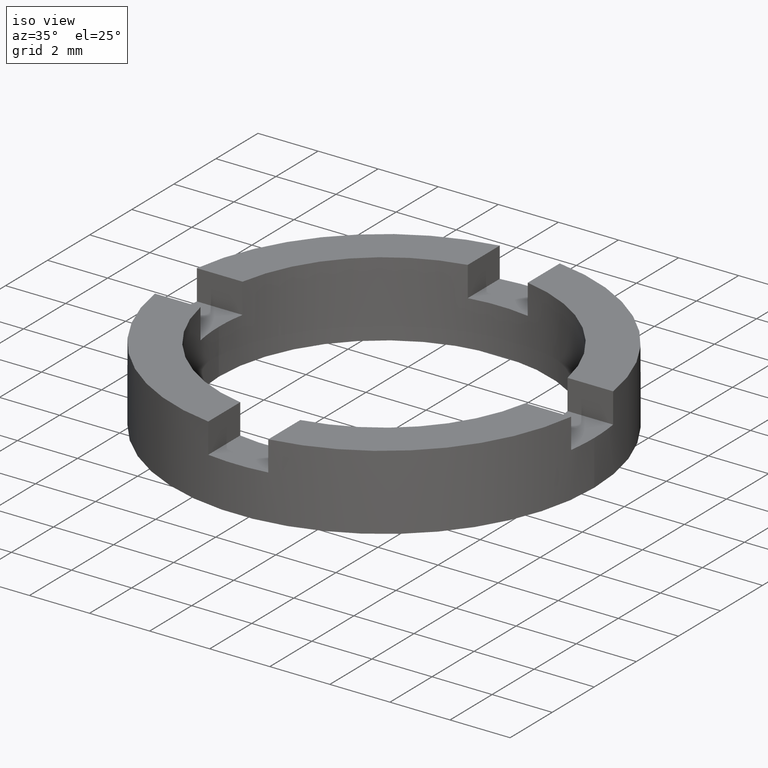
[diagram: clean part render]
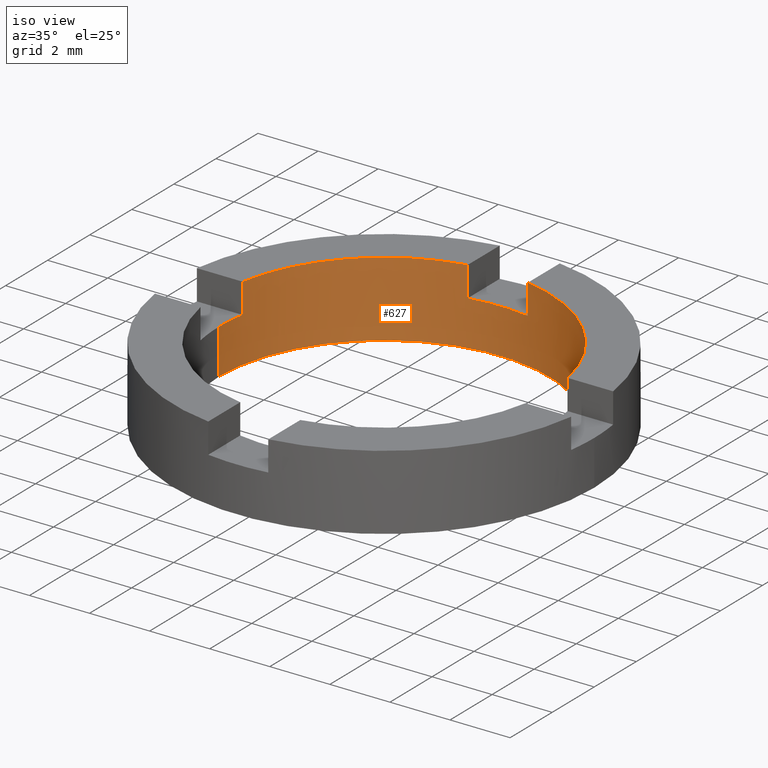
[diagram: same view with one face highlighted and labeled with its STEP entity id]
A machine part, iso view. The second image highlights one B-rep face of the part: STEP entity #627.
In plain terms, the highlighted cylindrical surface (partial cylindrical patch) has radius 5.5 mm, axis along (-0, -0, -1).
Its self-contained STEP definition (entity closure, byte-faithful):
#4 = LINE ( 'NONE', #207, #532 ) ;
#16 = VERTEX_POINT ( 'NONE', #54 ) ;
#18 = DIRECTION ( 'NONE',  ( 1.000000000000000000, 0.000000000000000000, 0.000000000000000000 ) ) ;
#23 = CIRCLE ( 'NONE', #606, 5.500000000000000000 ) ;
#28 = CARTESIAN_POINT ( 'NONE',  ( 0.000000000000000000, 0.000000000000000000, 2.500000000000000000 ) ) ;
#32 = VECTOR ( 'NONE', #368, 1000.000000000000000 ) ;
#54 = CARTESIAN_POINT ( 'NONE',  ( 5.500000000000000000, 6.735557395310442023E-16, 0.000000000000000000 ) ) ;
#56 = CARTESIAN_POINT ( 'NONE',  ( 5.500000000000000000, 6.735557395310442023E-16, 1.500000000000000000 ) ) ;
#65 = CARTESIAN_POINT ( 'NONE',  ( -0.9999999999999986677, 5.408326913195983465, 1.500000000000000000 ) ) ;
#66 = CARTESIAN_POINT ( 'NONE',  ( -5.408326913195980801, 1.000000000000019096, 2.500000000000000000 ) ) ;
#67 = EDGE_CURVE ( 'NONE', #428, #455, #298, .T. ) ;
#68 = DIRECTION ( 'NONE',  ( 0.000000000000000000, 0.000000000000000000, 1.000000000000000000 ) ) ;
#74 = EDGE_CURVE ( 'NONE', #695, #166, #23, .T. ) ;
#75 = DIRECTION ( 'NONE',  ( -1.000000000000000000, 0.000000000000000000, 0.000000000000000000 ) ) ;
#87 = DIRECTION ( 'NONE',  ( 1.000000000000000000, -5.329070518200751394E-15, 0.000000000000000000 ) ) ;
#118 = ORIENTED_EDGE ( 'NONE', *, *, #656, .F. ) ;
#119 = CARTESIAN_POINT ( 'NONE',  ( 5.408326913195987018, 0.9999999999999787947, 1.500000000000000000 ) ) ;
#120 = EDGE_CURVE ( 'NONE', #421, #466, #4, .T. ) ;
#130 = ORIENTED_EDGE ( 'NONE', *, *, #464, .F. ) ;
#132 = AXIS2_PLACEMENT_3D ( 'NONE', #571, #259, #18 ) ;
#142 = AXIS2_PLACEMENT_3D ( 'NONE', #579, #68, #574 ) ;
#143 = CARTESIAN_POINT ( 'NONE',  ( 5.500000000000000000, 6.735557395310442023E-16, 2.500000000000000000 ) ) ;
#144 = DIRECTION ( 'NONE',  ( 1.000000000000000000, 0.000000000000000000, 0.000000000000000000 ) ) ;
#153 = AXIS2_PLACEMENT_3D ( 'NONE', #278, #200, #451 ) ;
#156 = EDGE_LOOP ( 'NONE', ( #639, #389, #643, #367, #648, #118, #365, #649, #633, #130, #698, #179 ) ) ;
#166 = VERTEX_POINT ( 'NONE', #56 ) ;
#174 = CARTESIAN_POINT ( 'NONE',  ( -5.500000000000000000, 0.000000000000000000, 1.500000000000000000 ) ) ;
#179 = ORIENTED_EDGE ( 'NONE', *, *, #781, .F. ) ;
#193 = EDGE_CURVE ( 'NONE', #695, #710, #570, .T. ) ;
#200 = DIRECTION ( 'NONE',  ( 0.000000000000000000, 0.000000000000000000, 1.000000000000000000 ) ) ;
#207 = CARTESIAN_POINT ( 'NONE',  ( -5.408326913195980801, 1.000000000000019096, 1.500000000000000000 ) ) ;
#233 = CARTESIAN_POINT ( 'NONE',  ( 1.000000000000001332, 5.408326913195982577, 1.500000000000000000 ) ) ;
#243 = LINE ( 'NONE', #720, #476 ) ;
#247 = VECTOR ( 'NONE', #291, 1000.000000000000000 ) ;
#249 = CARTESIAN_POINT ( 'NONE',  ( -0.9999999999999986677, 5.408326913195983465, 1.500000000000000000 ) ) ;
#259 = DIRECTION ( 'NONE',  ( 0.000000000000000000, -0.000000000000000000, -1.000000000000000000 ) ) ;
#262 = AXIS2_PLACEMENT_3D ( 'NONE', #363, #431, #322 ) ;
#273 = CARTESIAN_POINT ( 'NONE',  ( 5.408326913195987018, 0.9999999999999787947, 2.500000000000000000 ) ) ;
#278 = CARTESIAN_POINT ( 'NONE',  ( 0.000000000000000000, 0.000000000000000000, 2.500000000000000000 ) ) ;
#288 = AXIS2_PLACEMENT_3D ( 'NONE', #382, #372, #144 ) ;
#291 = DIRECTION ( 'NONE',  ( -0.000000000000000000, -0.000000000000000000, -1.000000000000000000 ) ) ;
#298 = LINE ( 'NONE', #332, #32 ) ;
#299 = DIRECTION ( 'NONE',  ( -0.000000000000000000, -0.000000000000000000, 1.000000000000000000 ) ) ;
#318 = CARTESIAN_POINT ( 'NONE',  ( -5.500000000000000000, 0.000000000000000000, 0.000000000000000000 ) ) ;
#322 = DIRECTION ( 'NONE',  ( 1.000000000000000000, 7.993605777301125513E-15, 0.000000000000000000 ) ) ;
#327 = DIRECTION ( 'NONE',  ( -0.000000000000000000, -0.000000000000000000, -1.000000000000000000 ) ) ;
#332 = CARTESIAN_POINT ( 'NONE',  ( 1.000000000000001332, 5.408326913195982577, 1.500000000000000000 ) ) ;
#354 = CARTESIAN_POINT ( 'NONE',  ( 5.408326913195987018, 0.9999999999999787947, 1.500000000000000000 ) ) ;
#363 = CARTESIAN_POINT ( 'NONE',  ( 0.000000000000000000, 0.000000000000000000, 1.500000000000000000 ) ) ;
#365 = ORIENTED_EDGE ( 'NONE', *, *, #680, .T. ) ;
#367 = ORIENTED_EDGE ( 'NONE', *, *, #665, .T. ) ;
#368 = DIRECTION ( 'NONE',  ( -0.000000000000000000, -0.000000000000000000, 1.000000000000000000 ) ) ;
#372 = DIRECTION ( 'NONE',  ( 0.000000000000000000, 0.000000000000000000, 1.000000000000000000 ) ) ;
#382 = CARTESIAN_POINT ( 'NONE',  ( 0.000000000000000000, 0.000000000000000000, 0.000000000000000000 ) ) ;
#389 = ORIENTED_EDGE ( 'NONE', *, *, #74, .F. ) ;
#393 = VERTEX_POINT ( 'NONE', #174 ) ;
#401 = VERTEX_POINT ( 'NONE', #249 ) ;
#421 = VERTEX_POINT ( 'NONE', #701 ) ;
#423 = CARTESIAN_POINT ( 'NONE',  ( 1.000000000000001332, 5.408326913195982577, 2.500000000000000000 ) ) ;
#428 = VERTEX_POINT ( 'NONE', #233 ) ;
#430 = VERTEX_POINT ( 'NONE', #318 ) ;
#431 = DIRECTION ( 'NONE',  ( 0.000000000000000000, -0.000000000000000000, -1.000000000000000000 ) ) ;
#438 = CARTESIAN_POINT ( 'NONE',  ( 0.000000000000000000, 0.000000000000000000, 1.500000000000000000 ) ) ;
#447 = VERTEX_POINT ( 'NONE', #704 ) ;
#451 = DIRECTION ( 'NONE',  ( 1.000000000000000000, 0.000000000000000000, 0.000000000000000000 ) ) ;
#455 = VERTEX_POINT ( 'NONE', #423 ) ;
#464 = EDGE_CURVE ( 'NONE', #393, #421, #744, .T. ) ;
#466 = VERTEX_POINT ( 'NONE', #66 ) ;
#476 = VECTOR ( 'NONE', #583, 1000.000000000000000 ) ;
#484 = EDGE_CURVE ( 'NONE', #447, #466, #726, .T. ) ;
#509 = CYLINDRICAL_SURFACE ( 'NONE', #577, 5.500000000000000000 ) ;
#532 = VECTOR ( 'NONE', #299, 1000.000000000000000 ) ;
#561 = EDGE_CURVE ( 'NONE', #166, #16, #723, .T. ) ;
#563 = VECTOR ( 'NONE', #659, 1000.000000000000000 ) ;
#570 = LINE ( 'NONE', #354, #563 ) ;
#571 = CARTESIAN_POINT ( 'NONE',  ( 0.000000000000000000, 0.000000000000000000, 1.500000000000000000 ) ) ;
#574 = DIRECTION ( 'NONE',  ( 1.000000000000000000, 0.000000000000000000, 0.000000000000000000 ) ) ;
#577 = AXIS2_PLACEMENT_3D ( 'NONE', #28, #327, #75 ) ;
#578 = DIRECTION ( 'NONE',  ( 0.000000000000000000, -0.000000000000000000, -1.000000000000000000 ) ) ;
#579 = CARTESIAN_POINT ( 'NONE',  ( 0.000000000000000000, 0.000000000000000000, 2.500000000000000000 ) ) ;
#583 = DIRECTION ( 'NONE',  ( -0.000000000000000000, -0.000000000000000000, -1.000000000000000000 ) ) ;
#606 = AXIS2_PLACEMENT_3D ( 'NONE', #438, #578, #87 ) ;
#613 = EDGE_CURVE ( 'NONE', #393, #430, #243, .T. ) ;
#627 = ADVANCED_FACE ( 'NONE', ( #737 ), #509, .F. ) ;
#633 = ORIENTED_EDGE ( 'NONE', *, *, #120, .F. ) ;
#639 = ORIENTED_EDGE ( 'NONE', *, *, #561, .F. ) ;
#643 = ORIENTED_EDGE ( 'NONE', *, *, #193, .T. ) ;
#648 = ORIENTED_EDGE ( 'NONE', *, *, #67, .F. ) ;
#649 = ORIENTED_EDGE ( 'NONE', *, *, #484, .T. ) ;
#656 = EDGE_CURVE ( 'NONE', #401, #428, #768, .T. ) ;
#659 = DIRECTION ( 'NONE',  ( -0.000000000000000000, -0.000000000000000000, 1.000000000000000000 ) ) ;
#665 = EDGE_CURVE ( 'NONE', #710, #455, #772, .T. ) ;
#670 = DIRECTION ( 'NONE',  ( -0.000000000000000000, -0.000000000000000000, 1.000000000000000000 ) ) ;
#680 = EDGE_CURVE ( 'NONE', #401, #447, #728, .T. ) ;
#695 = VERTEX_POINT ( 'NONE', #119 ) ;
#698 = ORIENTED_EDGE ( 'NONE', *, *, #613, .T. ) ;
#701 = CARTESIAN_POINT ( 'NONE',  ( -5.408326913195980801, 1.000000000000019096, 1.500000000000000000 ) ) ;
#704 = CARTESIAN_POINT ( 'NONE',  ( -0.9999999999999986677, 5.408326913195983465, 2.500000000000000000 ) ) ;
#710 = VERTEX_POINT ( 'NONE', #273 ) ;
#720 = CARTESIAN_POINT ( 'NONE',  ( -5.500000000000000000, 0.000000000000000000, 2.500000000000000000 ) ) ;
#723 = LINE ( 'NONE', #143, #247 ) ;
#726 = CIRCLE ( 'NONE', #153, 5.500000000000000000 ) ;
#728 = LINE ( 'NONE', #65, #729 ) ;
#729 = VECTOR ( 'NONE', #670, 1000.000000000000000 ) ;
#730 = CIRCLE ( 'NONE', #288, 5.500000000000000000 ) ;
#737 = FACE_OUTER_BOUND ( 'NONE', #156, .T. ) ;
#744 = CIRCLE ( 'NONE', #132, 5.500000000000000000 ) ;
#768 = CIRCLE ( 'NONE', #262, 5.500000000000000000 ) ;
#772 = CIRCLE ( 'NONE', #142, 5.500000000000000000 ) ;
#781 = EDGE_CURVE ( 'NONE', #16, #430, #730, .T. ) ;